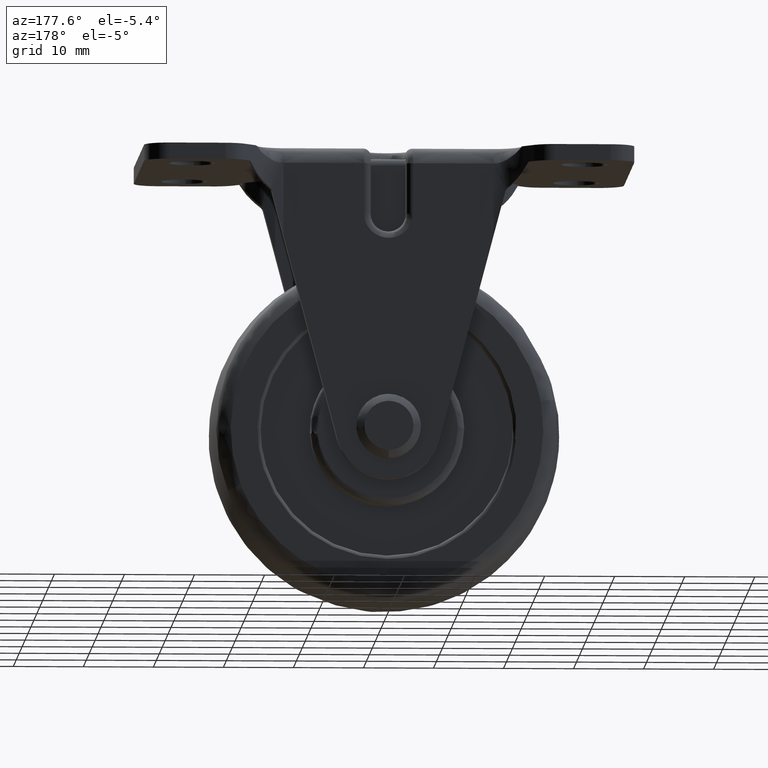
[diagram: clean part render]
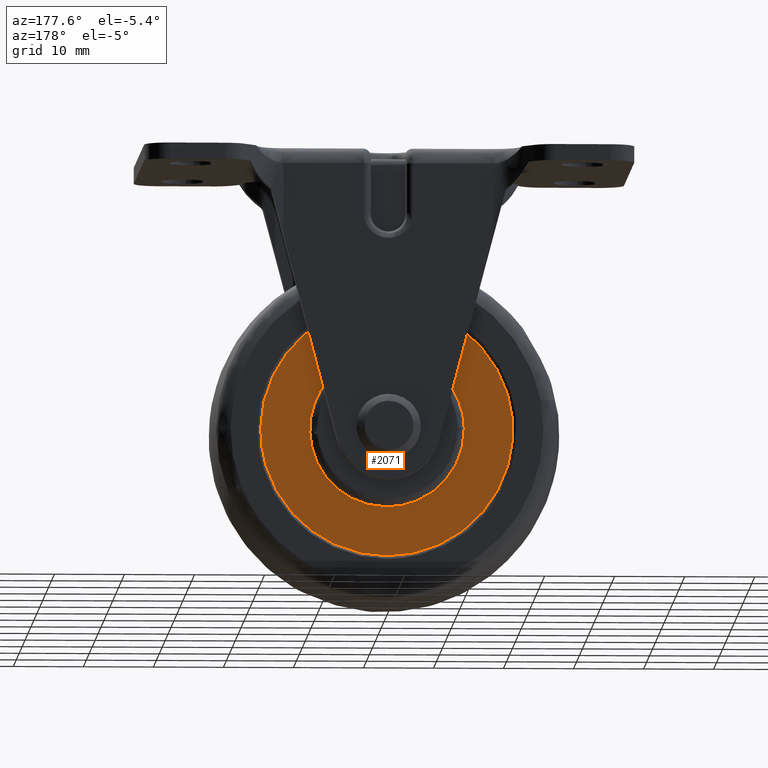
[diagram: same view with one face highlighted and labeled with its STEP entity id]
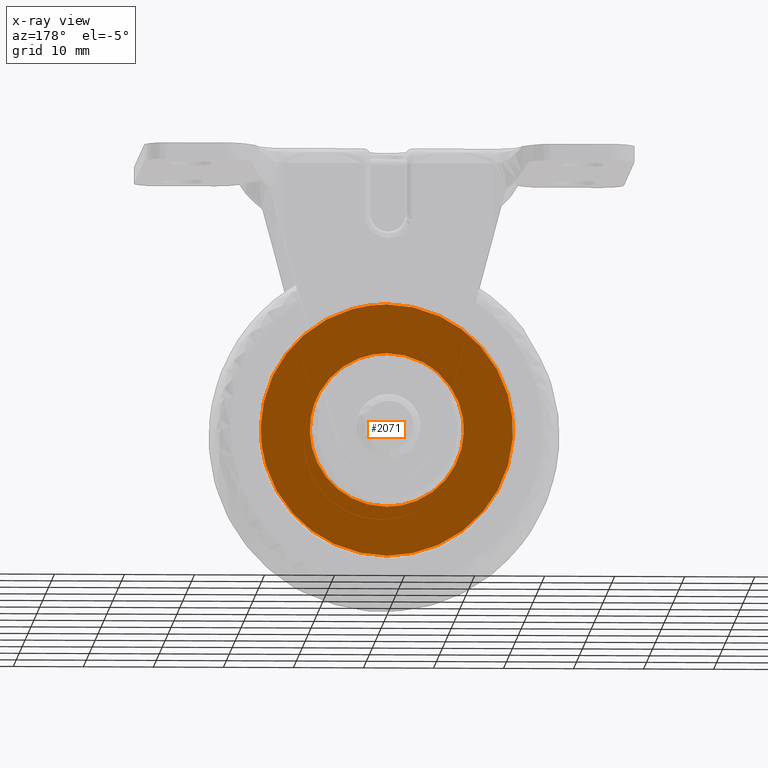
[diagram: x-ray of the same camera — body ghosted, the highlighted face saturated]
A machine part, auxiliary view. The second image highlights one B-rep face of the part: STEP entity #2071.
The next image is the same camera in x-ray: the body ghosted, the highlighted face saturated — about 0% of this face is hidden behind the body in this view.
In plain terms, the highlighted face is a freeform B-spline surface patch.
Its self-contained STEP definition (entity closure, byte-faithful):
#500=CARTESIAN_POINT('',(-7.431490954744101,9.500000000000108,8.110051922740899));
#501=VERTEX_POINT('',#500);
#507=CARTESIAN_POINT('',(0.0,9.500000000000108,11.0));
#508=VERTEX_POINT('',#507);
#509=CARTESIAN_POINT('',(0.0,9.500000000000108,11.0));
#510=CARTESIAN_POINT('',(-4.277665012773086,9.500000000000110,11.000000000000002));
#511=CARTESIAN_POINT('',(-7.431490954744101,9.500000000000108,8.110051922740899));
#519=(BOUNDED_CURVE()B_SPLINE_CURVE(2,(#509,#510,#511),.UNSPECIFIED.,.F.,.U.)B_SPLINE_CURVE_WITH_KNOTS((3,3),(0.500000000000000,0.618415184345594),.UNSPECIFIED.)CURVE()GEOMETRIC_REPRESENTATION_ITEM()RATIONAL_B_SPLINE_CURVE((1.0,0.861267982002523,0.853959783891506))REPRESENTATION_ITEM(''));
#520=EDGE_CURVE('',#508,#501,#519,.T.);
#522=CARTESIAN_POINT('',(9.624416668680734,9.500000000000107,5.326406273226682));
#523=VERTEX_POINT('',#522);
#524=CARTESIAN_POINT('',(9.624416668680734,9.500000000000105,5.326406273226682));
#525=CARTESIAN_POINT('',(6.484500114954535,9.500000000000112,11.000000000000002));
#526=CARTESIAN_POINT('',(0.0,9.500000000000108,11.0));
#534=(BOUNDED_CURVE()B_SPLINE_CURVE(2,(#524,#525,#526),.UNSPECIFIED.,.F.,.U.)B_SPLINE_CURVE_WITH_KNOTS((3,3),(0.332484116585811,0.500000000000000),.UNSPECIFIED.)CURVE()GEOMETRIC_REPRESENTATION_ITEM()RATIONAL_B_SPLINE_CURVE((0.870495274837750,0.803742934817757,1.0))REPRESENTATION_ITEM(''));
#535=EDGE_CURVE('',#523,#508,#534,.T.);
#585=CARTESIAN_POINT('',(0.0,9.500000000000108,-11.0));
#586=VERTEX_POINT('',#585);
#587=CARTESIAN_POINT('',(0.0,9.500000000000108,-11.0));
#588=CARTESIAN_POINT('',(11.0,9.500000000000108,-10.999999999999998));
#589=CARTESIAN_POINT('',(11.0,9.500000000000108,1.211545E-015));
#590=CARTESIAN_POINT('',(11.0,9.500000000000108,2.840830358828323));
#591=CARTESIAN_POINT('',(9.624416668680734,9.500000000000105,5.326406273226682));
#599=(BOUNDED_CURVE()B_SPLINE_CURVE(2,(#587,#588,#589,#590,#591),.UNSPECIFIED.,.F.,.U.)B_SPLINE_CURVE_WITH_KNOTS((3,2,3),(0.0,0.250000000000000,0.332484116585811),.UNSPECIFIED.)CURVE()GEOMETRIC_REPRESENTATION_ITEM()RATIONAL_B_SPLINE_CURVE((1.0,0.707106781186548,1.0,0.903363846368791,0.870495274837750))REPRESENTATION_ITEM(''));
#600=EDGE_CURVE('',#586,#523,#599,.T.);
#602=CARTESIAN_POINT('',(-7.431490954744101,9.500000000000108,8.110051922740899));
#603=CARTESIAN_POINT('',(-11.0,9.500000000000108,4.840116915619819));
#604=CARTESIAN_POINT('',(-11.0,9.500000000000108,1.211545E-015));
#605=CARTESIAN_POINT('',(-11.0,9.500000000000108,-10.999999999999998));
#606=CARTESIAN_POINT('',(0.0,9.500000000000108,-11.0));
#614=(BOUNDED_CURVE()B_SPLINE_CURVE(2,(#602,#603,#604,#605,#606),.UNSPECIFIED.,.F.,.U.)B_SPLINE_CURVE_WITH_KNOTS((3,2,3),(0.618415184345594,0.750000000000000,1.0),.UNSPECIFIED.)CURVE()GEOMETRIC_REPRESENTATION_ITEM()RATIONAL_B_SPLINE_CURVE((0.853959783891506,0.845838799184025,1.0,0.707106781186548,1.0))REPRESENTATION_ITEM(''));
#615=EDGE_CURVE('',#501,#586,#614,.T.);
#903=CARTESIAN_POINT('',(-17.956182129127441,9.500000002923031,-1.255198528362772));
#904=VERTEX_POINT('',#903);
#905=CARTESIAN_POINT('',(0.0,9.500000000000119,-18.0));
#906=VERTEX_POINT('',#905);
#907=CARTESIAN_POINT('',(-17.956182129127445,9.500000002923031,-1.255198528362773));
#908=CARTESIAN_POINT('',(-16.785663250790122,9.500000000000117,-18.000000000000007));
#909=CARTESIAN_POINT('',(0.0,9.500000000000119,-18.0));
#917=(BOUNDED_CURVE()B_SPLINE_CURVE(2,(#907,#908,#909),.UNSPECIFIED.,.F.,.U.)B_SPLINE_CURVE_WITH_KNOTS((3,3),(0.762166313464958,1.0),.UNSPECIFIED.)CURVE()GEOMETRIC_REPRESENTATION_ITEM()RATIONAL_B_SPLINE_CURVE((0.972879876386872,0.721360504033927,1.0))REPRESENTATION_ITEM(''));
#918=EDGE_CURVE('',#904,#906,#917,.T.);
#920=CARTESIAN_POINT('',(17.998578795668120,9.500000002901398,0.226188717945830));
#921=VERTEX_POINT('',#920);
#922=CARTESIAN_POINT('',(0.0,9.500000000000119,-18.0));
#923=CARTESIAN_POINT('',(18.000000000000007,9.500000000000119,-18.000000000000007));
#924=CARTESIAN_POINT('',(18.0,9.500000000000119,1.211545E-015));
#925=CARTESIAN_POINT('',(17.999999999999996,9.500000000000119,0.113098823899503));
#926=CARTESIAN_POINT('',(17.998578795668116,9.500000002901398,0.226188717945830));
#934=(BOUNDED_CURVE()B_SPLINE_CURVE(2,(#922,#923,#924,#925,#926),.UNSPECIFIED.,.F.,.U.)B_SPLINE_CURVE_WITH_KNOTS((3,2,3),(0.0,0.250000000000000,0.252215704079161),.UNSPECIFIED.)CURVE()GEOMETRIC_REPRESENTATION_ITEM()RATIONAL_B_SPLINE_CURVE((1.0,0.707106781186547,1.0,0.997404141201266,0.994854295641967))REPRESENTATION_ITEM(''));
#935=EDGE_CURVE('',#906,#921,#934,.T.);
#1029=CARTESIAN_POINT('',(0.0,9.500000000000119,18.0));
#1030=VERTEX_POINT('',#1029);
#1031=CARTESIAN_POINT('',(0.0,9.500000000000119,18.0));
#1032=CARTESIAN_POINT('',(-18.000000000000007,9.500000000000119,18.000000000000007));
#1033=CARTESIAN_POINT('',(-18.0,9.500000000000119,1.211545E-015));
#1034=CARTESIAN_POINT('',(-18.000000000000004,9.500000000000119,-0.628364085749641));
#1035=CARTESIAN_POINT('',(-17.956182129127445,9.500000002923031,-1.255198528362773));
#1043=(BOUNDED_CURVE()B_SPLINE_CURVE(2,(#1031,#1032,#1033,#1034,#1035),.UNSPECIFIED.,.F.,.U.)B_SPLINE_CURVE_WITH_KNOTS((3,2,3),(0.500000000000000,0.750000000000000,0.762166313464958),.UNSPECIFIED.)CURVE()GEOMETRIC_REPRESENTATION_ITEM()RATIONAL_B_SPLINE_CURVE((1.0,0.707106781186547,1.0,0.985746277152620,0.972879876386872))REPRESENTATION_ITEM(''));
#1044=EDGE_CURVE('',#1030,#904,#1043,.T.);
#1078=CARTESIAN_POINT('',(17.998578795668116,9.500000002901398,0.226188717945830));
#1079=CARTESIAN_POINT('',(17.775214738241822,9.500000000000119,17.999999999999996));
#1080=CARTESIAN_POINT('',(0.0,9.500000000000119,18.0));
#1088=(BOUNDED_CURVE()B_SPLINE_CURVE(2,(#1078,#1079,#1080),.UNSPECIFIED.,.F.,.U.)B_SPLINE_CURVE_WITH_KNOTS((3,3),(0.252215704079161,0.500000000000000),.UNSPECIFIED.)CURVE()GEOMETRIC_REPRESENTATION_ITEM()RATIONAL_B_SPLINE_CURVE((0.994854295641967,0.709702639985281,1.0))REPRESENTATION_ITEM(''));
#1089=EDGE_CURVE('',#921,#1030,#1088,.T.);
#2054=CARTESIAN_POINT('',(-19.795974362716510,9.500000000000119,19.798199930225010));
#2055=CARTESIAN_POINT('',(-19.795974362716510,9.500000000000119,-19.798200895820258));
#2056=CARTESIAN_POINT('',(19.796606201011659,9.500000000000119,19.798199930225010));
#2057=CARTESIAN_POINT('',(19.796606201011659,9.500000000000119,-19.798200895820258));
#2058=B_SPLINE_SURFACE_WITH_KNOTS('',1,1,((#2054,#2056),(#2055,#2057)),.UNSPECIFIED.,.F.,.F.,.U.,(2,2),(2,2),(0.0,39.596400826045269),(0.0,39.592580563728163),.UNSPECIFIED.);
#2059=ORIENTED_EDGE('',*,*,#918,.F.);
#2060=ORIENTED_EDGE('',*,*,#1044,.F.);
#2061=ORIENTED_EDGE('',*,*,#1089,.F.);
#2062=ORIENTED_EDGE('',*,*,#935,.F.);
#2063=EDGE_LOOP('',(#2059,#2060,#2061,#2062));
#2064=FACE_OUTER_BOUND('',#2063,.T.);
#2065=ORIENTED_EDGE('',*,*,#520,.T.);
#2066=ORIENTED_EDGE('',*,*,#615,.T.);
#2067=ORIENTED_EDGE('',*,*,#600,.T.);
#2068=ORIENTED_EDGE('',*,*,#535,.T.);
#2069=EDGE_LOOP('',(#2065,#2066,#2067,#2068));
#2070=FACE_BOUND('',#2069,.T.);
#2071=ADVANCED_FACE('',(#2064,#2070),#2058,.F.);